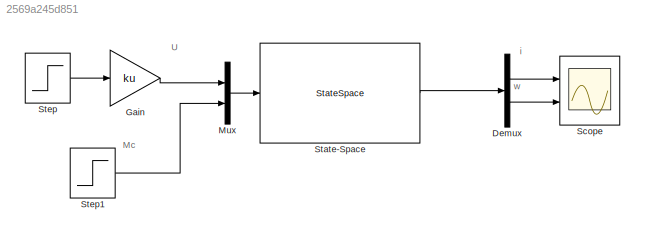
MODEL slx_2569a245d851
KIND model
CONFIG AbsTol = auto
CONFIG EnableMultiTasking = off
CONFIG FixedStep = auto
CONFIG MaxStep = auto
CONFIG MinStep = auto
CONFIG RelTol = 1e-3
CONFIG SampleTimeConstraint = Unconstrained
CONFIG SolverName = VariableStepAuto
CONFIG StartTime = 0.0
CONFIG StopTime = 0.4
BLOCK [Demux] Demux
  Outputs = 2
  Ports = [1, 2]
BLOCK [Gain] Gain
  Gain = ku
BLOCK [Mux] Mux
  DisplayOption = bar
  Inputs = 2
  Ports = [2, 1]
BLOCK [Scope] Scope
  Floating = off
  NumInputPorts = 2
  Ports = [2]
  ScopeSpecificationString = Simulink.scopes.TimeScopeBlockCfg('CurrentConfiguration', extmgr.ConfigurationSet(extmgr.Configuration('Core','General UI',true,'FigureColor',[1 1 1]),extmgr.Configuration('Core','Source UI',true),extmgr.Configuration('Sources','WiredSimulink',true),extmgr.Configuration('Visuals','Time Domain',true,'PlotType','Line','SerializedDisplays',{struct('MinYLimReal','-10.49322','MaxYLimReal','94.43898','Y...<+1589ch>
BLOCK [StateSpace] State-Space
  A = [-R/L -ke/L; km/Jn 0]
  B = [1/L 0; 0 -1/Jn]
  C = [km 0; 0 1]
  D = zeros(2,2)
  InitialCondition = 0
  Ports = [1, 1]
BLOCK [Step] Step
  SampleTime = 0
  Time = 0
BLOCK [Step] Step1
  After = 0.02
  SampleTime = 0
  Time = 0.35
  VectorParams1D = off
  ZeroCross = off
ANNOTATION (root): U
ANNOTATION (root): w
ANNOTATION (root): Mc
ANNOTATION (root): i
LINE Demux:1 -> Scope:1
LINE Demux:2 -> Scope:2
LINE Gain:1 -> Mux:1
LINE Mux:1 -> State-Space:1
LINE State-Space:1 -> Demux:1
LINE Step1:1 -> Mux:2
LINE Step:1 -> Gain:1
